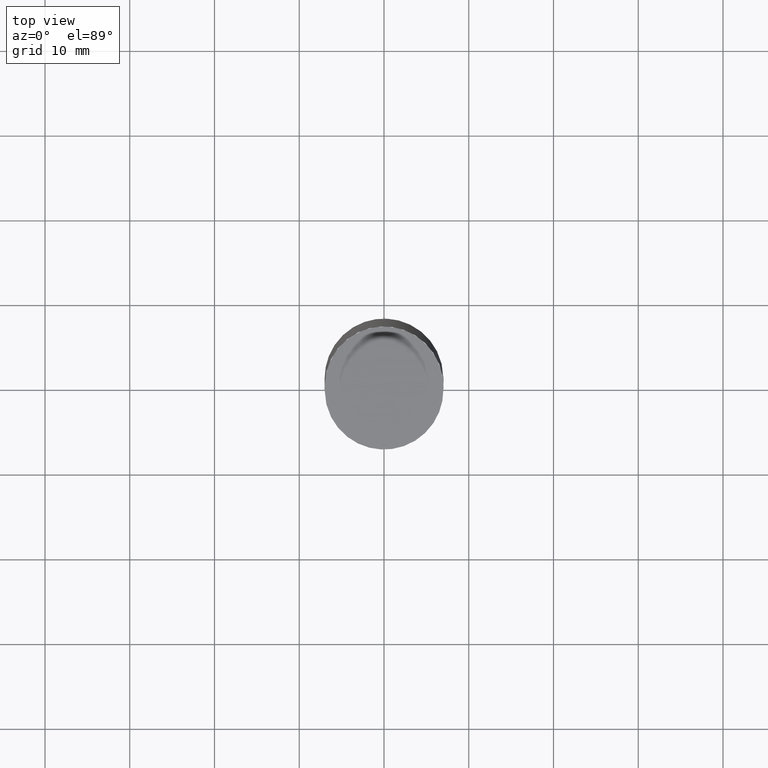
[diagram: clean part render]
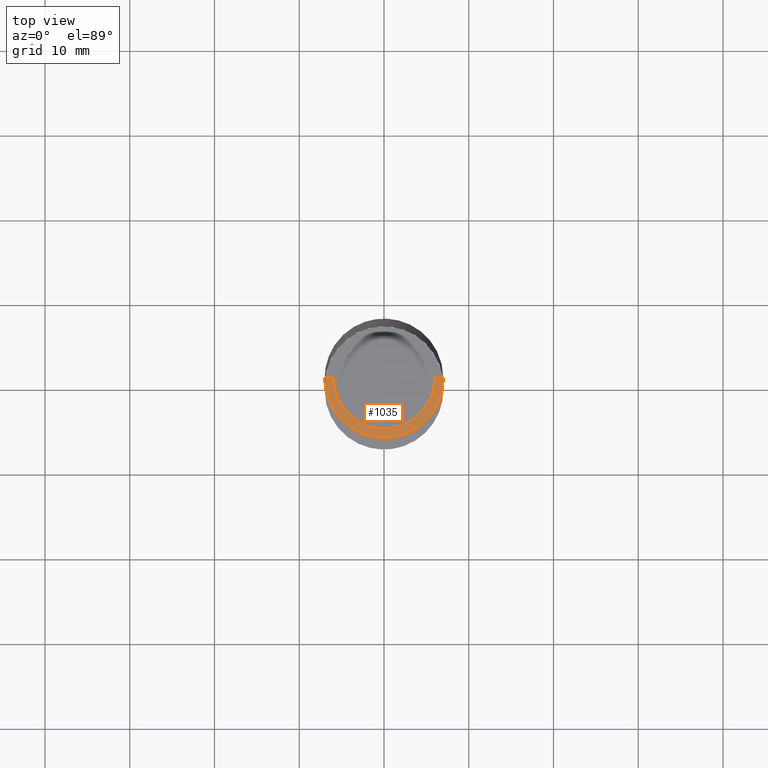
[diagram: same view with one face highlighted and labeled with its STEP entity id]
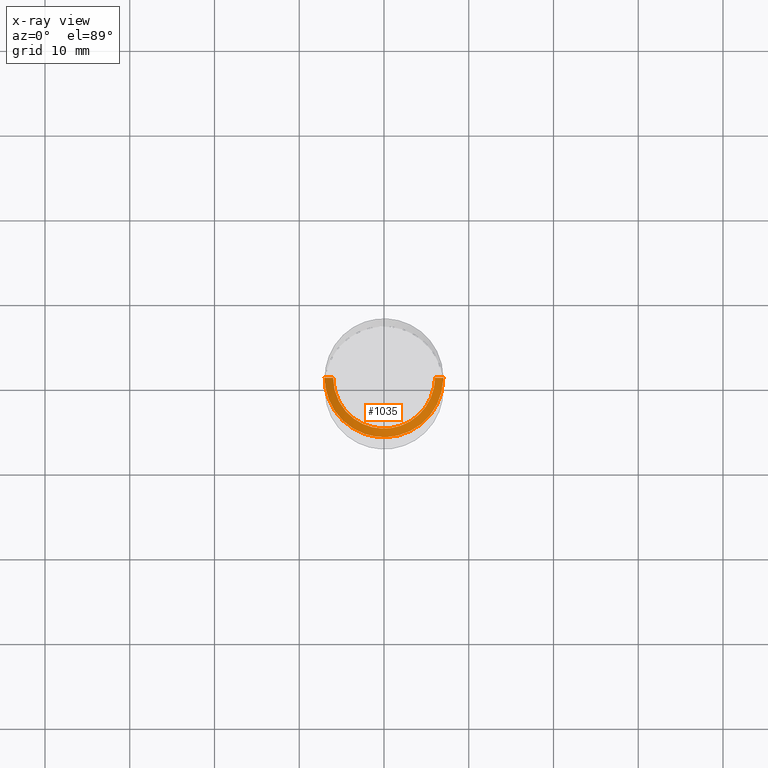
[diagram: x-ray of the same camera — body ghosted, the highlighted face saturated]
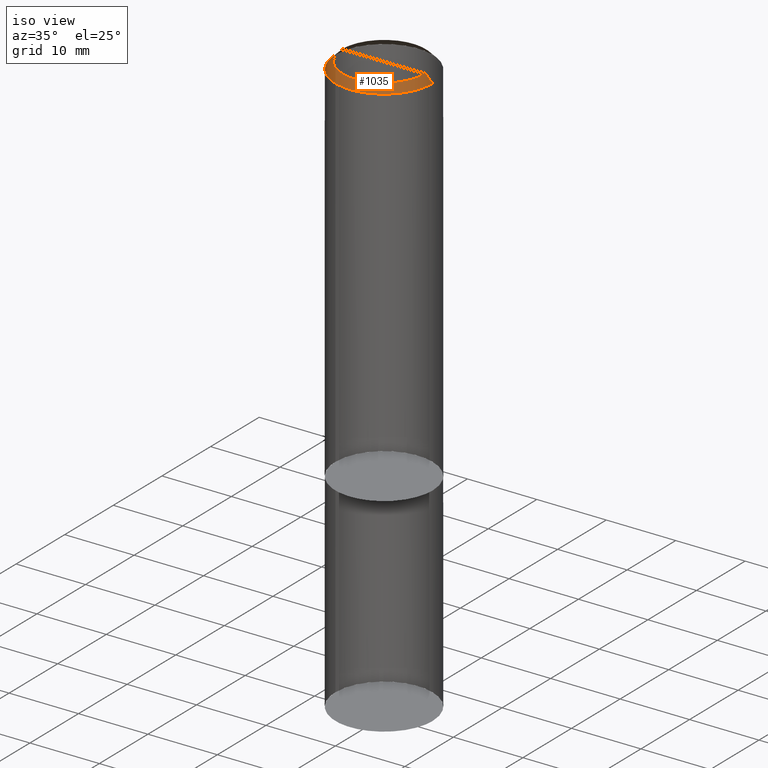
[diagram: same view with one face highlighted and labeled with its STEP entity id]
A machine part, top view. The second image highlights one B-rep face of the part: STEP entity #1035.
The next image is the same camera in x-ray: the body ghosted, the highlighted face saturated — about 0% of this face is hidden behind the body in this view.
A second angle (iso view) of the same face is appended — the face is thin or edge-on in the first view.
In plain terms, the highlighted face is a freeform B-spline surface patch.
Its self-contained STEP definition (entity closure, byte-faithful):
#778=CARTESIAN_POINT('',(7.0,0.0,53.0));
#782=CARTESIAN_POINT('',(-7.0,0.0,53.0));
#783=CARTESIAN_POINT('',(6.0,0.0,54.0));
#787=CARTESIAN_POINT('',(-6.0,0.0,54.0));
#789=CARTESIAN_POINT('',(-7.0,-7.0,53.0));
#790=CARTESIAN_POINT('',(0.0,-7.0,53.0));
#791=CARTESIAN_POINT('',(7.0,-7.0,53.0));
#792=CARTESIAN_POINT('',(-6.0,-6.0,54.0));
#793=CARTESIAN_POINT('',(0.0,-6.0,54.0));
#794=CARTESIAN_POINT('',(6.0,-6.0,54.0));
#1016=(
BOUNDED_SURFACE()
B_SPLINE_SURFACE(1,2,(
(#782,#789,#790,#791,#778),
(#787,#792,#793,#794,#783)
), .UNSPECIFIED.,.F.,.F.,.F.)
B_SPLINE_SURFACE_WITH_KNOTS((2,2),(3,2,3),(
0.0,1.0),(
0.0,0.5,1.0), .UNSPECIFIED.)
GEOMETRIC_REPRESENTATION_ITEM()
RATIONAL_B_SPLINE_SURFACE(((1.0,0.707106781187,1.0,0.707106781187,1.0),
(1.0,0.707106781187,1.0,0.707106781187,1.0)
))
REPRESENTATION_ITEM('')
SURFACE()
);
#1017=(
BOUNDED_CURVE()
B_SPLINE_CURVE(2,(#778,#791,#790,#789,#782),.UNSPECIFIED.,.F.,.F.)
B_SPLINE_CURVE_WITH_KNOTS((3,2,3),
(0.0,0.5,1.0),.UNSPECIFIED.)
CURVE()
GEOMETRIC_REPRESENTATION_ITEM()
RATIONAL_B_SPLINE_CURVE((1.0,0.707106781187,1.0,0.707106781187,1.0))
REPRESENTATION_ITEM('')
);
#1018=(
BOUNDED_CURVE()
B_SPLINE_CURVE(1,(#782,#787),.UNSPECIFIED.,.F.,.F.)
B_SPLINE_CURVE_WITH_KNOTS((2,2),
(0.0,1.0),.UNSPECIFIED.)
CURVE()
GEOMETRIC_REPRESENTATION_ITEM()
RATIONAL_B_SPLINE_CURVE((1.0,1.0))
REPRESENTATION_ITEM('')
);
#1019=(
BOUNDED_CURVE()
B_SPLINE_CURVE(2,(#787,#792,#793,#794,#783),.UNSPECIFIED.,.F.,.F.)
B_SPLINE_CURVE_WITH_KNOTS((3,2,3),
(0.0,0.5,1.0),.UNSPECIFIED.)
CURVE()
GEOMETRIC_REPRESENTATION_ITEM()
RATIONAL_B_SPLINE_CURVE((1.0,0.707106781187,1.0,0.707106781187,1.0))
REPRESENTATION_ITEM('')
);
#1020=(
BOUNDED_CURVE()
B_SPLINE_CURVE(1,(#783,#778),.UNSPECIFIED.,.F.,.F.)
B_SPLINE_CURVE_WITH_KNOTS((2,2),
(0.0,1.0),.UNSPECIFIED.)
CURVE()
GEOMETRIC_REPRESENTATION_ITEM()
RATIONAL_B_SPLINE_CURVE((1.0,1.0))
REPRESENTATION_ITEM('')
);
#1021=VERTEX_POINT('',#778);
#1022=VERTEX_POINT('',#782);
#1023=VERTEX_POINT('',#783);
#1024=VERTEX_POINT('',#787);
#1025=EDGE_CURVE('',#1021,#1022,#1017,.T.);
#1026=EDGE_CURVE('',#1022,#1024,#1018,.T.);
#1027=EDGE_CURVE('',#1024,#1023,#1019,.T.);
#1028=EDGE_CURVE('',#1023,#1021,#1020,.T.);
#1029=ORIENTED_EDGE('',*,*,#1025,.T.);
#1030=ORIENTED_EDGE('',*,*,#1026,.T.);
#1031=ORIENTED_EDGE('',*,*,#1027,.T.);
#1032=ORIENTED_EDGE('',*,*,#1028,.T.);
#1033=EDGE_LOOP('',(#1029,#1030,#1031,#1032));
#1034=FACE_OUTER_BOUND('',#1033,.T.);
#1035=ADVANCED_FACE('',(#1034),#1016,.T.);